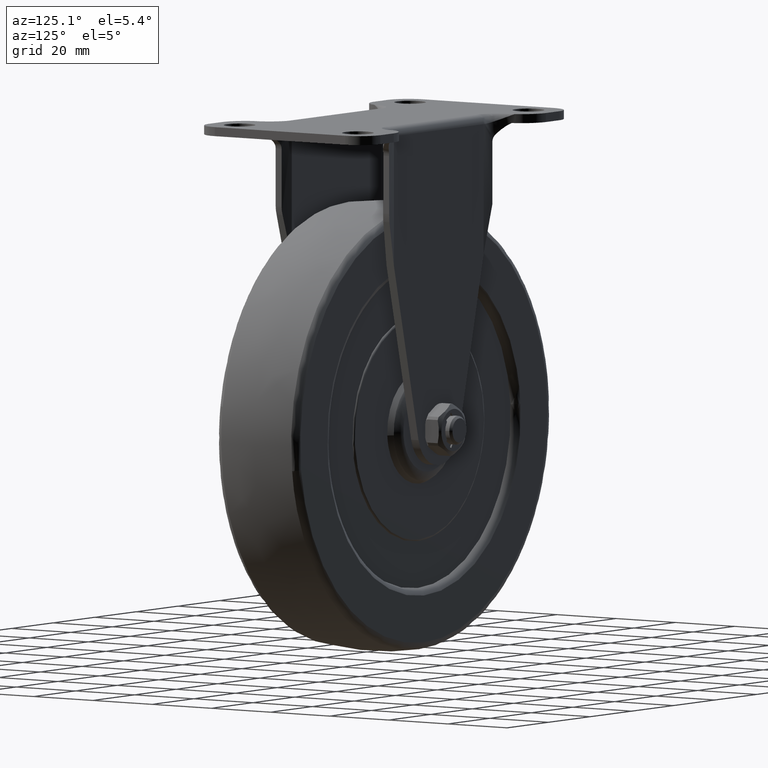
[diagram: clean part render]
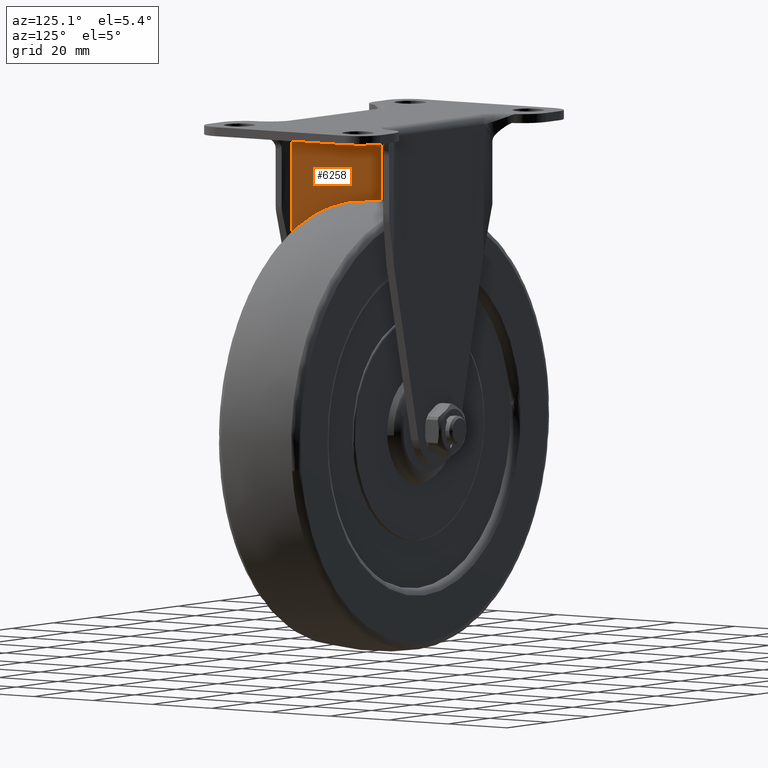
[diagram: same view with one face highlighted and labeled with its STEP entity id]
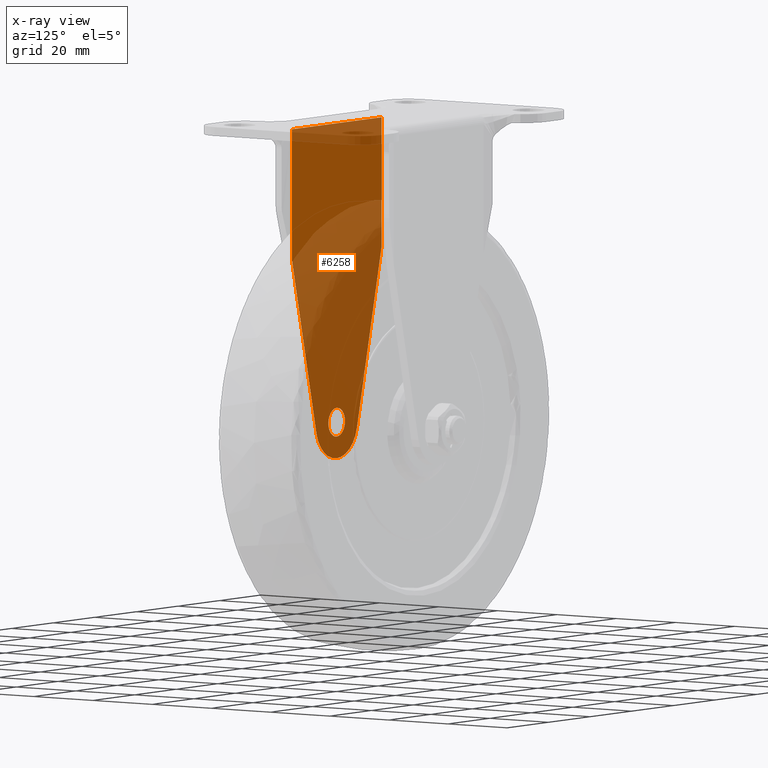
[diagram: x-ray of the same camera — body ghosted, the highlighted face saturated]
A machine part, auxiliary view. The second image highlights one B-rep face of the part: STEP entity #6258.
The next image is the same camera in x-ray: the body ghosted, the highlighted face saturated — about 71% of this face is hidden behind the body in this view.
In plain terms, the highlighted face is a freeform B-spline surface patch.
Its self-contained STEP definition (entity closure, byte-faithful):
#2642=CARTESIAN_POINT('',(-3.041628258433776,-16.0,-2.597787046209002));
#2643=VERTEX_POINT('',#2642);
#2649=CARTESIAN_POINT('',(0.0,-16.0,4.0));
#2650=VERTEX_POINT('',#2649);
#2651=CARTESIAN_POINT('',(0.0,-16.0,4.0));
#2652=CARTESIAN_POINT('',(-4.000000000000000,-15.999999999999998,4.000000000000000));
#2653=CARTESIAN_POINT('',(-4.0,-16.0,0.0));
#2654=CARTESIAN_POINT('',(-4.0,-16.0,-1.475674063367228));
#2655=CARTESIAN_POINT('',(-3.041628258433776,-16.000000000000004,-2.597787046209002));
#2663=(BOUNDED_CURVE()B_SPLINE_CURVE(2,(#2651,#2652,#2653,#2654,#2655),.UNSPECIFIED.,.F.,.U.)B_SPLINE_CURVE_WITH_KNOTS((3,2,3),(0.0,0.250000000000000,0.363142905618545),.UNSPECIFIED.)CURVE()GEOMETRIC_REPRESENTATION_ITEM()RATIONAL_B_SPLINE_CURVE((1.0,0.707106781186548,1.0,0.867444840749911,0.854871088478094))REPRESENTATION_ITEM(''));
#2664=EDGE_CURVE('',#2650,#2643,#2663,.T.);
#2666=CARTESIAN_POINT('',(2.597787316664219,-15.999999999999380,-3.041628027444741));
#2667=VERTEX_POINT('',#2666);
#2668=CARTESIAN_POINT('',(2.597787316664219,-15.999999999999375,-3.041628027444740));
#2669=CARTESIAN_POINT('',(4.0,-15.999999999999998,-1.844029145810617));
#2670=CARTESIAN_POINT('',(4.0,-16.0,0.0));
#2671=CARTESIAN_POINT('',(4.000000000000000,-15.999999999999998,4.000000000000000));
#2672=CARTESIAN_POINT('',(0.0,-16.0,4.0));
#2680=(BOUNDED_CURVE()B_SPLINE_CURVE(2,(#2668,#2669,#2670,#2671,#2672),.UNSPECIFIED.,.F.,.U.)B_SPLINE_CURVE_WITH_KNOTS((3,2,3),(0.613142919055915,0.750000000000000,1.0),.UNSPECIFIED.)CURVE()GEOMETRIC_REPRESENTATION_ITEM()RATIONAL_B_SPLINE_CURVE((0.854871085491463,0.839661956179494,1.0,0.707106781186548,1.0))REPRESENTATION_ITEM(''));
#2681=EDGE_CURVE('',#2667,#2650,#2680,.T.);
#2757=CARTESIAN_POINT('',(0.0,-16.0,-4.0));
#2758=VERTEX_POINT('',#2757);
#2759=CARTESIAN_POINT('',(0.0,-16.0,-4.0));
#2760=CARTESIAN_POINT('',(1.475674265406376,-16.0,-4.000000000000000));
#2761=CARTESIAN_POINT('',(2.597787316664219,-15.999999999999375,-3.041628027444740));
#2769=(BOUNDED_CURVE()B_SPLINE_CURVE(2,(#2759,#2760,#2761),.UNSPECIFIED.,.F.,.U.)B_SPLINE_CURVE_WITH_KNOTS((3,3),(0.500000000000000,0.613142919055915),.UNSPECIFIED.)CURVE()GEOMETRIC_REPRESENTATION_ITEM()RATIONAL_B_SPLINE_CURVE((1.0,0.867444825007053,0.854871085491463))REPRESENTATION_ITEM(''));
#2770=EDGE_CURVE('',#2758,#2667,#2769,.T.);
#2772=CARTESIAN_POINT('',(-3.041628258433776,-16.000000000000004,-2.597787046209002));
#2773=CARTESIAN_POINT('',(-1.844029361441178,-15.999999999999998,-4.000000000000000));
#2774=CARTESIAN_POINT('',(0.0,-16.0,-4.0));
#2782=(BOUNDED_CURVE()B_SPLINE_CURVE(2,(#2772,#2773,#2774),.UNSPECIFIED.,.F.,.U.)B_SPLINE_CURVE_WITH_KNOTS((3,3),(0.363142905618545,0.500000000000000),.UNSPECIFIED.)CURVE()GEOMETRIC_REPRESENTATION_ITEM()RATIONAL_B_SPLINE_CURVE((0.854871088478094,0.839661940436636,1.0))REPRESENTATION_ITEM(''));
#2783=EDGE_CURVE('',#2643,#2758,#2782,.T.);
#4593=CARTESIAN_POINT('',(-21.590155530322299,-16.0,47.122126327070497));
#4594=VERTEX_POINT('',#4593);
#4608=CARTESIAN_POINT('',(-9.724018100333170,-16.0,-2.333117239733630));
#4609=VERTEX_POINT('',#4608);
#4610=CARTESIAN_POINT('',(-21.590155530322299,-16.0,47.122126327070497));
#4611=CARTESIAN_POINT('',(-9.724018100333170,-16.0,-2.333117239733630));
#4612=QUASI_UNIFORM_CURVE('',1,(#4610,#4611),.UNSPECIFIED.,.F.,.U.);
#4613=EDGE_CURVE('',#4594,#4609,#4612,.T.);
#4721=CARTESIAN_POINT('',(9.724006395502389,-16.0,-2.333117345066995));
#4722=VERTEX_POINT('',#4721);
#4728=CARTESIAN_POINT('',(21.590155530322349,-16.0,47.122172643425998));
#4729=VERTEX_POINT('',#4728);
#4730=CARTESIAN_POINT('',(9.724006395502389,-16.0,-2.333117345066995));
#4731=CARTESIAN_POINT('',(21.590155530322349,-16.0,47.122172643425998));
#4732=QUASI_UNIFORM_CURVE('',1,(#4730,#4731),.UNSPECIFIED.,.F.,.U.);
#4733=EDGE_CURVE('',#4722,#4729,#4732,.T.);
#4771=CARTESIAN_POINT('',(-9.724018100333172,-16.0,-2.333117239733632));
#4772=CARTESIAN_POINT('',(-7.884457777779585,-15.999999999999995,-9.999967918354237));
#4773=CARTESIAN_POINT('',(-0.000005893940183,-16.0,-9.999967961057587));
#4774=CARTESIAN_POINT('',(7.884445989899220,-15.999999999999995,-9.999968003760937));
#4775=CARTESIAN_POINT('',(9.724006395502389,-16.0,-2.333117345066996));
#4783=(BOUNDED_CURVE()B_SPLINE_CURVE(2,(#4771,#4772,#4773,#4774,#4775),.UNSPECIFIED.,.F.,.U.)B_SPLINE_CURVE_WITH_KNOTS((3,2,3),(0.0,0.500000000000000,1.0),.UNSPECIFIED.)CURVE()GEOMETRIC_REPRESENTATION_ITEM()RATIONAL_B_SPLINE_CURVE((1.0,0.785275408100328,1.0,0.785275408100328,1.0))REPRESENTATION_ITEM(''));
#4784=EDGE_CURVE('',#4609,#4722,#4783,.T.);
#5219=CARTESIAN_POINT('',(21.590155530322349,-16.0,83.0));
#5220=VERTEX_POINT('',#5219);
#5221=CARTESIAN_POINT('',(21.590155530322349,-16.0,83.0));
#5222=CARTESIAN_POINT('',(21.590155530322349,-16.0,47.122172643425998));
#5223=QUASI_UNIFORM_CURVE('',1,(#5221,#5222),.UNSPECIFIED.,.F.,.U.);
#5224=EDGE_CURVE('',#5220,#4729,#5223,.T.);
#5261=CARTESIAN_POINT('',(-21.590155530322349,-16.0,83.0));
#5262=VERTEX_POINT('',#5261);
#5276=CARTESIAN_POINT('',(-21.590155530322349,-16.0,83.0));
#5277=CARTESIAN_POINT('',(-21.590155530322299,-16.0,47.122126327070497));
#5278=QUASI_UNIFORM_CURVE('',1,(#5276,#5277),.UNSPECIFIED.,.F.,.U.);
#5279=EDGE_CURVE('',#5262,#4594,#5278,.T.);
#5567=CARTESIAN_POINT('',(-21.590155530322349,-16.0,83.0));
#5568=CARTESIAN_POINT('',(21.590155530322349,-16.0,83.0));
#5569=QUASI_UNIFORM_CURVE('',1,(#5567,#5568),.UNSPECIFIED.,.F.,.U.);
#5570=EDGE_CURVE('',#5262,#5220,#5569,.T.);
#6239=CARTESIAN_POINT('',(-23.747011019147600,-16.0,-14.645316180460270));
#6240=CARTESIAN_POINT('',(-23.747011019147589,-16.0,87.645350713856374));
#6241=CARTESIAN_POINT('',(23.747009860961409,-16.0,-14.645316180460270));
#6242=CARTESIAN_POINT('',(23.747009860961398,-16.0,87.645350713856359));
#6243=B_SPLINE_SURFACE_WITH_KNOTS('',1,1,((#6239,#6241),(#6240,#6242)),.UNSPECIFIED.,.F.,.F.,.U.,(2,2),(2,2),(0.0,102.290666894316600),(0.0,47.494020880109012),.UNSPECIFIED.);
#6244=ORIENTED_EDGE('',*,*,#4613,.F.);
#6245=ORIENTED_EDGE('',*,*,#5279,.F.);
#6246=ORIENTED_EDGE('',*,*,#5570,.T.);
#6247=ORIENTED_EDGE('',*,*,#5224,.T.);
#6248=ORIENTED_EDGE('',*,*,#4733,.F.);
#6249=ORIENTED_EDGE('',*,*,#4784,.F.);
#6250=EDGE_LOOP('',(#6244,#6245,#6246,#6247,#6248,#6249));
#6251=FACE_OUTER_BOUND('',#6250,.T.);
#6252=ORIENTED_EDGE('',*,*,#2770,.T.);
#6253=ORIENTED_EDGE('',*,*,#2681,.T.);
#6254=ORIENTED_EDGE('',*,*,#2664,.T.);
#6255=ORIENTED_EDGE('',*,*,#2783,.T.);
#6256=EDGE_LOOP('',(#6252,#6253,#6254,#6255));
#6257=FACE_BOUND('',#6256,.T.);
#6258=ADVANCED_FACE('',(#6251,#6257),#6243,.T.);